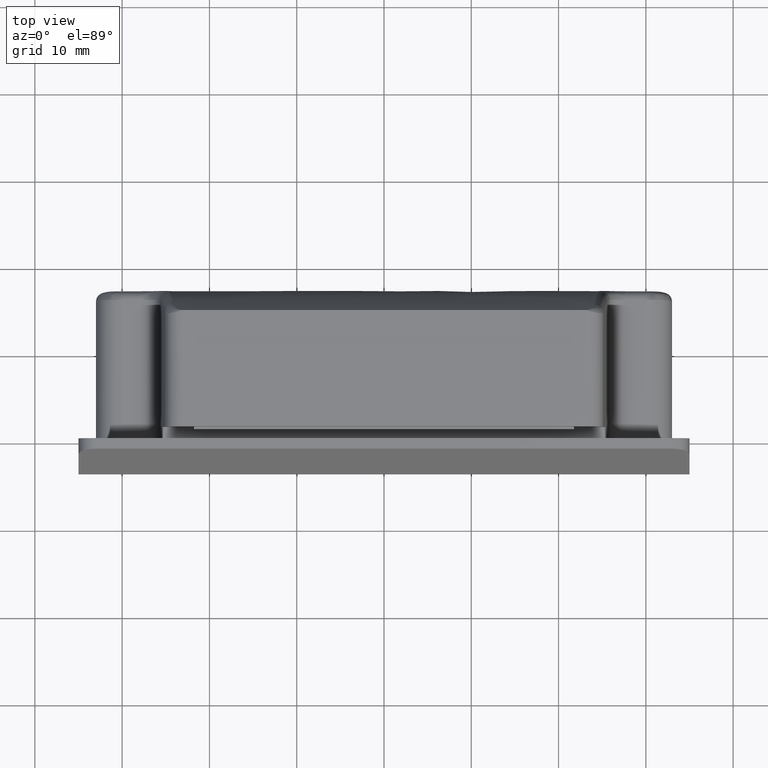
[diagram: clean part render]
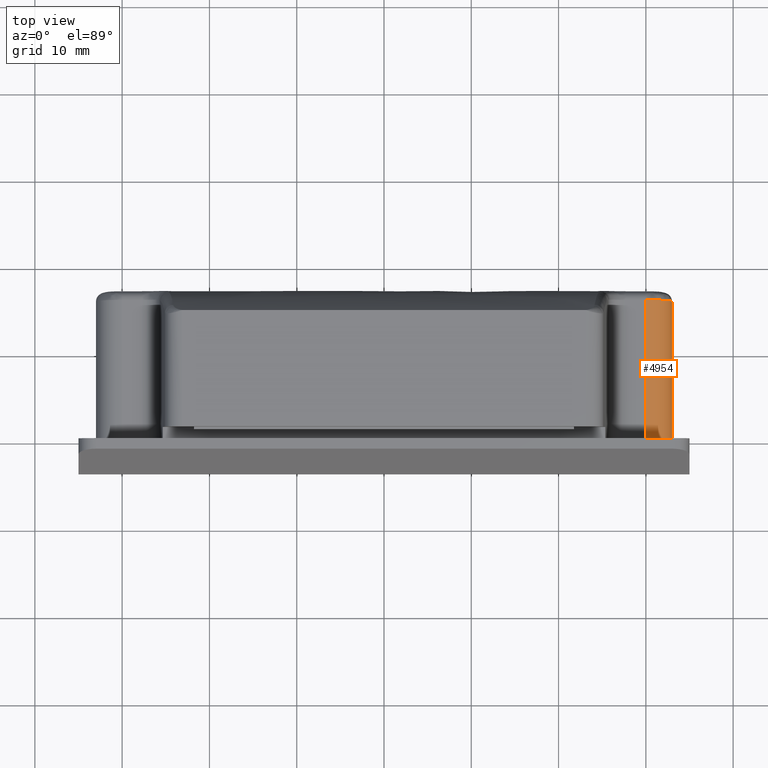
[diagram: same view with one face highlighted and labeled with its STEP entity id]
A machine part, top view. The second image highlights one B-rep face of the part: STEP entity #4954.
In plain terms, the highlighted face is a freeform B-spline surface patch.
Its self-contained STEP definition (entity closure, byte-faithful):
#2391=CARTESIAN_POINT('',(33.0,15.838821814150100,6.749999999999920));
#2392=VERTEX_POINT('',#2391);
#2688=CARTESIAN_POINT('',(30.0,15.982137159266451,9.750000000000000));
#2689=VERTEX_POINT('',#2688);
#2703=CARTESIAN_POINT('',(33.0,15.838821814150100,6.749999999999920));
#2704=CARTESIAN_POINT('',(32.997956080254532,15.844709967086720,6.834059836540411));
#2705=CARTESIAN_POINT('',(32.993823336868061,15.856615632738089,7.004026262227839));
#2706=CARTESIAN_POINT('',(32.959890284354628,15.872744119812010,7.260041023358073));
#2707=CARTESIAN_POINT('',(32.904242782036157,15.887869102611150,7.517773814996906));
#2708=CARTESIAN_POINT('',(32.823842335851573,15.901843125615240,7.774932532264328));
#2709=CARTESIAN_POINT('',(32.718443059652280,15.914706933824210,8.028992722756193));
#2710=CARTESIAN_POINT('',(32.587342469365481,15.926449229673310,8.277230568187902));
#2711=CARTESIAN_POINT('',(32.430328546595447,15.937073102962319,8.516739125879120));
#2712=CARTESIAN_POINT('',(32.247466232744273,15.946577662314951,8.744456587020007));
#2713=CARTESIAN_POINT('',(32.039202997978521,15.954963152834379,8.957201504780651));
#2714=CARTESIAN_POINT('',(31.806383436183179,15.962229370958591,9.151707274892399));
#2715=CARTESIAN_POINT('',(31.550284694887772,15.968376763572170,9.324694325617831));
#2716=CARTESIAN_POINT('',(31.272640331813161,15.973403585726819,9.472830540654240));
#2717=CARTESIAN_POINT('',(30.975659989007401,15.977316419103509,9.593153168798610));
#2718=CARTESIAN_POINT('',(30.662040829614160,15.980089965626339,9.681753227120991));
#2719=CARTESIAN_POINT('',(30.334971347563911,15.981821034943151,9.739144989818872));
#2720=CARTESIAN_POINT('',(30.112283065556550,15.982031193760820,9.746361378880117));
#2721=CARTESIAN_POINT('',(30.0,15.982137159265999,9.749999999999922));
#2722=B_SPLINE_CURVE_WITH_KNOTS('',3,(#2703,#2704,#2705,#2706,#2707,#2708,#2709,#2710,#2711,#2712,#2713,#2714,#2715,#2716,#2717,#2718,#2719,#2720,#2721),.UNSPECIFIED.,.F.,.U.,(4,1,1,1,1,1,1,1,1,1,1,1,1,1,1,1,4),(0.0,0.053615691443499,0.108409292837746,0.164382535940539,0.221537041188337,0.279874326484752,0.339395815144068,0.400102843083923,0.461996665349458,0.525078462041053,0.589349343709037,0.654810356271078,0.721462485501448,0.789306661135557,0.858343760628221,0.928574612599731,1.0),.UNSPECIFIED.);
#2723=EDGE_CURVE('',#2392,#2689,#2722,.T.);
#4703=CARTESIAN_POINT('',(33.0,0.0,6.749999999999920));
#4704=VERTEX_POINT('',#4703);
#4710=CARTESIAN_POINT('',(30.0,0.0,9.750000000000000));
#4711=VERTEX_POINT('',#4710);
#4712=CARTESIAN_POINT('',(33.0,0.0,6.749999999999920));
#4713=CARTESIAN_POINT('',(33.0,0.0,9.749999999999920));
#4714=CARTESIAN_POINT('',(30.0,0.0,9.749999999999920));
#4722=(BOUNDED_CURVE()B_SPLINE_CURVE(2,(#4712,#4713,#4714),.UNSPECIFIED.,.F.,.U.)CURVE()GEOMETRIC_REPRESENTATION_ITEM()QUASI_UNIFORM_CURVE()RATIONAL_B_SPLINE_CURVE((1.0,0.707106781186548,1.0))REPRESENTATION_ITEM(''));
#4723=EDGE_CURVE('',#4704,#4711,#4722,.T.);
#4921=CARTESIAN_POINT('',(33.0,15.838821814150100,6.749999999999920));
#4922=CARTESIAN_POINT('',(33.0,0.0,6.749999999999920));
#4923=QUASI_UNIFORM_CURVE('',1,(#4921,#4922),.UNSPECIFIED.,.F.,.U.);
#4924=EDGE_CURVE('',#2392,#4704,#4923,.T.);
#4930=CARTESIAN_POINT('',(29.973820393504880,16.381690588248109,9.749885769192433));
#4931=CARTESIAN_POINT('',(29.973820393504880,-0.409542264706204,9.749885769192433));
#4932=CARTESIAN_POINT('',(33.190804026035259,16.381690588248105,9.777959960038565));
#4933=CARTESIAN_POINT('',(33.190804026035259,-0.409542264706204,9.777959960038565));
#4934=CARTESIAN_POINT('',(32.994404395265612,16.381690588248109,6.566854381395352));
#4935=CARTESIAN_POINT('',(32.994404395265612,-0.409542264706204,6.566854381395352));
#4943=(BOUNDED_SURFACE()B_SPLINE_SURFACE(1,2,((#4930,#4932,#4934),(#4931,#4933,#4935)),.UNSPECIFIED.,.F.,.F.,.U.)B_SPLINE_SURFACE_WITH_KNOTS((2,2),(3,3),(0.0,16.791232852954309),(0.0,5.217748499531199),.UNSPECIFIED.)GEOMETRIC_REPRESENTATION_ITEM()RATIONAL_B_SPLINE_SURFACE(((1.0,0.681998360062499,1.0),(1.0,0.681998360062499,1.0)))REPRESENTATION_ITEM('')SURFACE());
#4944=ORIENTED_EDGE('',*,*,#4924,.F.);
#4945=ORIENTED_EDGE('',*,*,#2723,.T.);
#4946=CARTESIAN_POINT('',(30.0,15.982137159266451,9.750000000000000));
#4947=CARTESIAN_POINT('',(30.0,0.0,9.750000000000000));
#4948=QUASI_UNIFORM_CURVE('',1,(#4946,#4947),.UNSPECIFIED.,.F.,.U.);
#4949=EDGE_CURVE('',#2689,#4711,#4948,.T.);
#4950=ORIENTED_EDGE('',*,*,#4949,.T.);
#4951=ORIENTED_EDGE('',*,*,#4723,.F.);
#4952=EDGE_LOOP('',(#4944,#4945,#4950,#4951));
#4953=FACE_OUTER_BOUND('',#4952,.T.);
#4954=ADVANCED_FACE('',(#4953),#4943,.T.);